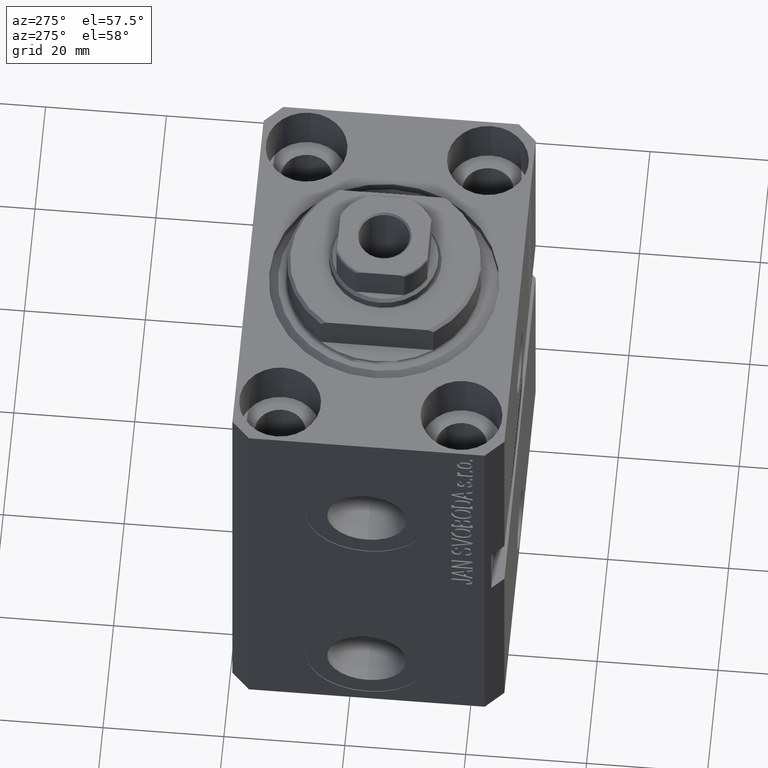
[diagram: clean part render]
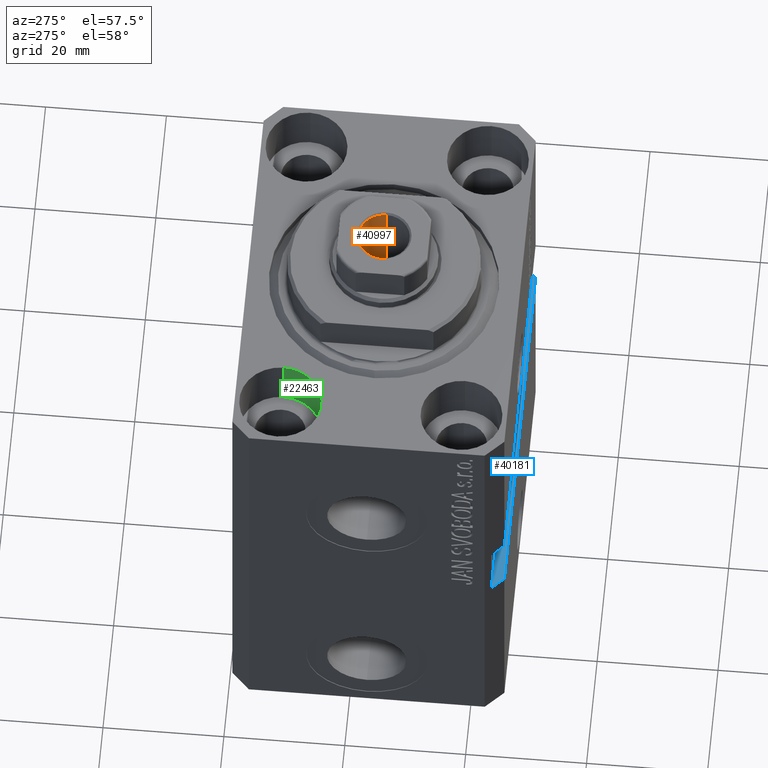
[diagram: same view with three faces highlighted in distinct colors, each labeled with its STEP entity id]
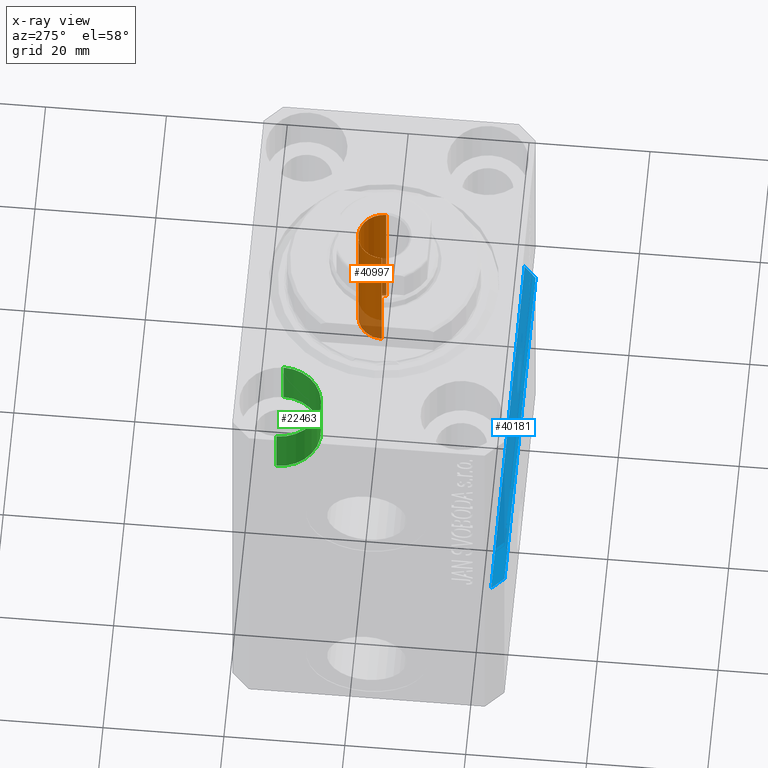
[diagram: x-ray of the same camera — body ghosted, the three highlighted faces saturated]
A machine part, auxiliary view with three faces highlighted in distinct colors.
The next image is the same camera in x-ray (body ghosted, the three faces saturated) — at least one of them is partly hidden behind the body in this view.
Their STEP definitions:

[orange] entity #40997 — the highlighted cylindrical surface (edge-blend (fillet) strip) has radius 4.25 mm, axis along (0, 0, 1).
#200 = CARTESIAN_POINT ( 'NONE',  ( 0.000000000000000000, 0.000000000000000000, 59.10000000000000853 ) ) ;
#390 = CARTESIAN_POINT ( 'NONE',  ( -4.249999999999996447, 5.204748896376247741E-16, 83.80000000000002558 ) ) ;
#870 = CARTESIAN_POINT ( 'NONE',  ( 4.249999999999996447, 0.000000000000000000, 83.80000000000002558 ) ) ;
#1225 = VECTOR ( 'NONE', #21658, 1000.000000000000000 ) ;
#1389 = AXIS2_PLACEMENT_3D ( 'NONE', #200, #7149, #30751 ) ;
#1873 = EDGE_CURVE ( 'NONE', #7084, #20506, #10568, .T. ) ;
#2321 = EDGE_CURVE ( 'NONE', #27924, #20506, #11984, .T. ) ;
#2338 = ORIENTED_EDGE ( 'NONE', *, *, #1873, .T. ) ;
#2639 = DIRECTION ( 'NONE',  ( -0.000000000000000000, -0.000000000000000000, 1.000000000000000000 ) ) ;
#4769 = CARTESIAN_POINT ( 'NONE',  ( -4.249999999999994671, 5.204748896376244783E-16, 59.10000000000000853 ) ) ;
#6763 = CARTESIAN_POINT ( 'NONE',  ( 4.249999999999994671, 0.000000000000000000, 59.10000000000000853 ) ) ;
#7084 = VERTEX_POINT ( 'NONE', #870 ) ;
#7149 = DIRECTION ( 'NONE',  ( -0.000000000000000000, -0.000000000000000000, 1.000000000000000000 ) ) ;
#10568 = CIRCLE ( 'NONE', #44276, 4.249999999999996447 ) ;
#11567 = EDGE_CURVE ( 'NONE', #42147, #27924, #28648, .T. ) ;
#11984 = LINE ( 'NONE', #39404, #1225 ) ;
#14523 = DIRECTION ( 'NONE',  ( 0.000000000000000000, 0.000000000000000000, 1.000000000000000000 ) ) ;
#14738 = DIRECTION ( 'NONE',  ( 1.000000000000000000, 0.000000000000000000, 0.000000000000000000 ) ) ;
#15039 = CARTESIAN_POINT ( 'NONE',  ( 4.249999999999996447, 0.000000000000000000, 84.10000000000000853 ) ) ;
#20389 = DIRECTION ( 'NONE',  ( 1.000000000000000000, 0.000000000000000000, 0.000000000000000000 ) ) ;
#20506 = VERTEX_POINT ( 'NONE', #390 ) ;
#21432 = ORIENTED_EDGE ( 'NONE', *, *, #11567, .F. ) ;
#21568 = LINE ( 'NONE', #15039, #26907 ) ;
#21658 = DIRECTION ( 'NONE',  ( -0.000000000000000000, -0.000000000000000000, 1.000000000000000000 ) ) ;
#23686 = ORIENTED_EDGE ( 'NONE', *, *, #26945, .T. ) ;
#26907 = VECTOR ( 'NONE', #35493, 1000.000000000000000 ) ;
#26945 = EDGE_CURVE ( 'NONE', #42147, #7084, #21568, .T. ) ;
#27896 = AXIS2_PLACEMENT_3D ( 'NONE', #40848, #2639, #20389 ) ;
#27924 = VERTEX_POINT ( 'NONE', #4769 ) ;
#28017 = CARTESIAN_POINT ( 'NONE',  ( 0.000000000000000000, 0.000000000000000000, 83.80000000000002558 ) ) ;
#28648 = CIRCLE ( 'NONE', #1389, 4.249999999999994671 ) ;
#30751 = DIRECTION ( 'NONE',  ( 1.000000000000000000, 0.000000000000000000, 0.000000000000000000 ) ) ;
#34178 = ORIENTED_EDGE ( 'NONE', *, *, #2321, .F. ) ;
#35493 = DIRECTION ( 'NONE',  ( -0.000000000000000000, -0.000000000000000000, 1.000000000000000000 ) ) ;
#37699 = CYLINDRICAL_SURFACE ( 'NONE', #27896, 4.249999999999996447 ) ;
#39404 = CARTESIAN_POINT ( 'NONE',  ( -4.249999999999996447, 5.204748896376247741E-16, 84.10000000000000853 ) ) ;
#40848 = CARTESIAN_POINT ( 'NONE',  ( 0.000000000000000000, 0.000000000000000000, 84.10000000000000853 ) ) ;
#40915 = EDGE_LOOP ( 'NONE', ( #34178, #21432, #23686, #2338 ) ) ;
#40997 = ADVANCED_FACE ( 'NONE', ( #41072 ), #37699, .F. ) ;
#41072 = FACE_OUTER_BOUND ( 'NONE', #40915, .T. ) ;
#42147 = VERTEX_POINT ( 'NONE', #6763 ) ;
#44276 = AXIS2_PLACEMENT_3D ( 'NONE', #28017, #14523, #14738 ) ;

[blue] entity #40181 — the highlighted planar face has unit normal (0, 0, -1).
#724 = EDGE_CURVE ( 'NONE', #34738, #29341, #41604, .T. ) ;
#4366 = DIRECTION ( 'NONE',  ( -1.000000000000000000, 0.000000000000000000, -1.067522139062765303E-16 ) ) ;
#4791 = PLANE ( 'NONE',  #39376 ) ;
#4879 = LINE ( 'NONE', #14770, #44374 ) ;
#5107 = DIRECTION ( 'NONE',  ( 1.000000000000000000, 1.067522139062765303E-16, 1.067522139062765303E-16 ) ) ;
#5885 = EDGE_CURVE ( 'NONE', #34738, #24437, #4879, .T. ) ;
#5996 = CARTESIAN_POINT ( 'NONE',  ( 31.49999999999650413, -20.49999999999949196, -41.99999999999998579 ) ) ;
#6815 = LINE ( 'NONE', #17816, #23698 ) ;
#7169 = VECTOR ( 'NONE', #5107, 1000.000000000000000 ) ;
#9374 = EDGE_CURVE ( 'NONE', #32606, #24437, #6815, .T. ) ;
#10011 = EDGE_CURVE ( 'NONE', #29341, #32606, #35890, .T. ) ;
#10111 = CARTESIAN_POINT ( 'NONE',  ( -29.49999999999650413, -22.49999999999949907, -41.99999999999999289 ) ) ;
#11401 = EDGE_LOOP ( 'NONE', ( #30251, #17030, #15489, #14465 ) ) ;
#11612 = DIRECTION ( 'NONE',  ( 1.000000000000000000, 1.067522139062765303E-16, 1.067522139062765303E-16 ) ) ;
#12378 = CARTESIAN_POINT ( 'NONE',  ( 29.49999999999650058, -22.49999999999949196, -41.99999999999998579 ) ) ;
#14465 = ORIENTED_EDGE ( 'NONE', *, *, #10011, .T. ) ;
#14578 = CARTESIAN_POINT ( 'NONE',  ( -31.49999999999650413, -20.49999999999949907, -41.99999999999999289 ) ) ;
#14770 = CARTESIAN_POINT ( 'NONE',  ( -32.49999999999650413, -20.49999999999949907, -41.99999999999999289 ) ) ;
#15489 = ORIENTED_EDGE ( 'NONE', *, *, #724, .T. ) ;
#17030 = ORIENTED_EDGE ( 'NONE', *, *, #5885, .F. ) ;
#17816 = CARTESIAN_POINT ( 'NONE',  ( 29.49999999999650058, -22.49999999999949551, -41.99999999999998579 ) ) ;
#20482 = DIRECTION ( 'NONE',  ( 0.7071067811865474617, -0.7071067811865474617, 7.548521435980497974E-17 ) ) ;
#23698 = VECTOR ( 'NONE', #37828, 1000.000000000000000 ) ;
#24437 = VERTEX_POINT ( 'NONE', #5996 ) ;
#29341 = VERTEX_POINT ( 'NONE', #10111 ) ;
#29803 = CARTESIAN_POINT ( 'NONE',  ( -32.49999999999650413, -22.49999999999949907, -41.99999999999999289 ) ) ;
#30251 = ORIENTED_EDGE ( 'NONE', *, *, #9374, .T. ) ;
#32046 = VECTOR ( 'NONE', #20482, 1000.000000000000114 ) ;
#32606 = VERTEX_POINT ( 'NONE', #12378 ) ;
#34738 = VERTEX_POINT ( 'NONE', #14578 ) ;
#35143 = FACE_OUTER_BOUND ( 'NONE', #11401, .T. ) ;
#35360 = DIRECTION ( 'NONE',  ( 1.067522139062765303E-16, 1.255495400513475380E-32, -1.000000000000000000 ) ) ;
#35890 = LINE ( 'NONE', #29803, #7169 ) ;
#37574 = CARTESIAN_POINT ( 'NONE',  ( -32.49999999999650413, -19.49999999999949551, -41.99999999999999289 ) ) ;
#37828 = DIRECTION ( 'NONE',  ( 0.7071067811865483499, 0.7071067811865466846, 7.548521435980509068E-17 ) ) ;
#39376 = AXIS2_PLACEMENT_3D ( 'NONE', #41882, #35360, #4366 ) ;
#40181 = ADVANCED_FACE ( 'NONE', ( #35143 ), #4791, .F. ) ;
#41604 = LINE ( 'NONE', #37574, #32046 ) ;
#41882 = CARTESIAN_POINT ( 'NONE',  ( -32.49999999999650413, -20.49999999999949907, -41.99999999999999289 ) ) ;
#44374 = VECTOR ( 'NONE', #11612, 1000.000000000000000 ) ;

[green] entity #22463 — the highlighted cylindrical surface (partial cylindrical patch) has radius 6.75 mm, axis along (0, 0, 1).
#853 = DIRECTION ( 'NONE',  ( 1.000000000000000000, 0.000000000000000000, 0.000000000000000000 ) ) ;
#945 = DIRECTION ( 'NONE',  ( -0.000000000000000000, -0.000000000000000000, 1.000000000000000000 ) ) ;
#972 = CARTESIAN_POINT ( 'NONE',  ( -31.75000000002253842, 15.00000000000000000, -9.000000000000000000 ) ) ;
#1660 = CIRCLE ( 'NONE', #39704, 6.750000000022533087 ) ;
#3996 = CARTESIAN_POINT ( 'NONE',  ( -25.00000000000000355, 15.00000000000000000, -9.000000000000000000 ) ) ;
#4219 = DIRECTION ( 'NONE',  ( -0.000000000000000000, -0.000000000000000000, 1.000000000000000000 ) ) ;
#5002 = CARTESIAN_POINT ( 'NONE',  ( -18.24999999997747224, 15.00000000000000000, 0.000000000000000000 ) ) ;
#5565 = CIRCLE ( 'NONE', #11305, 6.750000000022533087 ) ;
#6356 = ORIENTED_EDGE ( 'NONE', *, *, #23543, .F. ) ;
#6543 = VERTEX_POINT ( 'NONE', #5002 ) ;
#10804 = VERTEX_POINT ( 'NONE', #23309 ) ;
#11047 = VERTEX_POINT ( 'NONE', #33374 ) ;
#11305 = AXIS2_PLACEMENT_3D ( 'NONE', #17778, #24305, #27008 ) ;
#11488 = CARTESIAN_POINT ( 'NONE',  ( -31.75000000002253842, 15.00000000000000000, -9.000000000000000000 ) ) ;
#11611 = DIRECTION ( 'NONE',  ( 0.000000000000000000, 0.000000000000000000, 1.000000000000000000 ) ) ;
#11701 = LINE ( 'NONE', #11488, #13165 ) ;
#13165 = VECTOR ( 'NONE', #945, 1000.000000000000000 ) ;
#14984 = DIRECTION ( 'NONE',  ( 1.000000000000000000, 0.000000000000000000, 0.000000000000000000 ) ) ;
#17365 = ORIENTED_EDGE ( 'NONE', *, *, #41453, .F. ) ;
#17778 = CARTESIAN_POINT ( 'NONE',  ( -25.00000000000000355, 15.00000000000000000, 0.000000000000000000 ) ) ;
#18173 = CARTESIAN_POINT ( 'NONE',  ( -18.24999999997747224, 15.00000000000000000, -9.000000000000000000 ) ) ;
#18625 = LINE ( 'NONE', #18173, #25036 ) ;
#20720 = EDGE_CURVE ( 'NONE', #38309, #11047, #11701, .T. ) ;
#22463 = ADVANCED_FACE ( 'NONE', ( #38371 ), #31630, .F. ) ;
#23309 = CARTESIAN_POINT ( 'NONE',  ( -18.24999999997747224, 15.00000000000000000, -9.000000000000000000 ) ) ;
#23543 = EDGE_CURVE ( 'NONE', #38309, #10804, #1660, .T. ) ;
#24305 = DIRECTION ( 'NONE',  ( 0.000000000000000000, 0.000000000000000000, 1.000000000000000000 ) ) ;
#25036 = VECTOR ( 'NONE', #25147, 1000.000000000000000 ) ;
#25147 = DIRECTION ( 'NONE',  ( -0.000000000000000000, -0.000000000000000000, 1.000000000000000000 ) ) ;
#27008 = DIRECTION ( 'NONE',  ( 1.000000000000000000, 0.000000000000000000, 0.000000000000000000 ) ) ;
#30363 = EDGE_LOOP ( 'NONE', ( #6356, #37545, #35051, #17365 ) ) ;
#31630 = CYLINDRICAL_SURFACE ( 'NONE', #41232, 6.750000000022533087 ) ;
#32064 = CARTESIAN_POINT ( 'NONE',  ( -25.00000000000000355, 15.00000000000000000, -9.000000000000000000 ) ) ;
#33374 = CARTESIAN_POINT ( 'NONE',  ( -31.75000000002253842, 15.00000000000000000, 0.000000000000000000 ) ) ;
#33546 = EDGE_CURVE ( 'NONE', #11047, #6543, #5565, .T. ) ;
#35051 = ORIENTED_EDGE ( 'NONE', *, *, #33546, .T. ) ;
#37545 = ORIENTED_EDGE ( 'NONE', *, *, #20720, .T. ) ;
#38309 = VERTEX_POINT ( 'NONE', #972 ) ;
#38371 = FACE_OUTER_BOUND ( 'NONE', #30363, .T. ) ;
#39704 = AXIS2_PLACEMENT_3D ( 'NONE', #32064, #11611, #14984 ) ;
#41232 = AXIS2_PLACEMENT_3D ( 'NONE', #3996, #4219, #853 ) ;
#41453 = EDGE_CURVE ( 'NONE', #10804, #6543, #18625, .T. ) ;